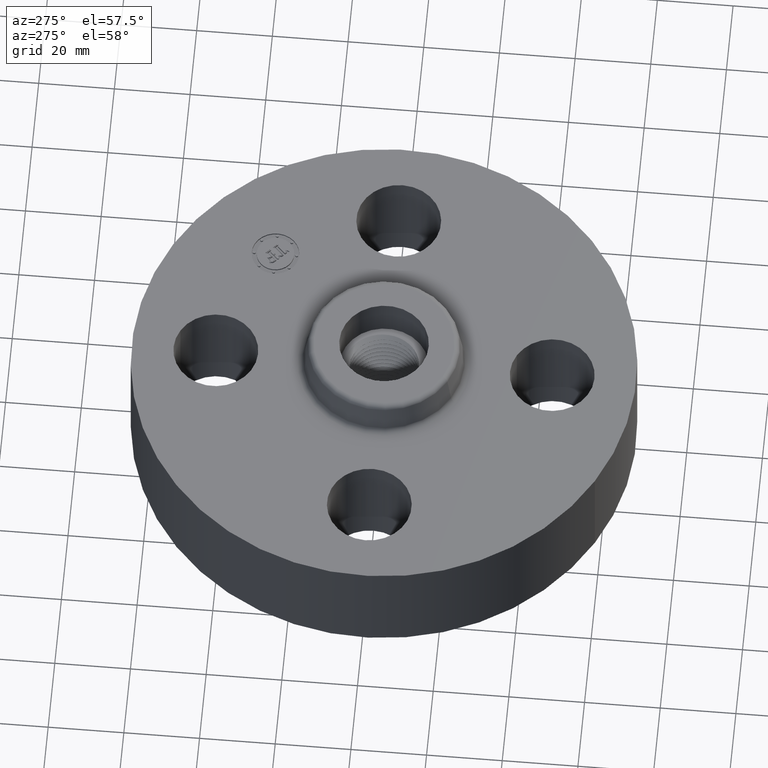
[diagram: clean part render]
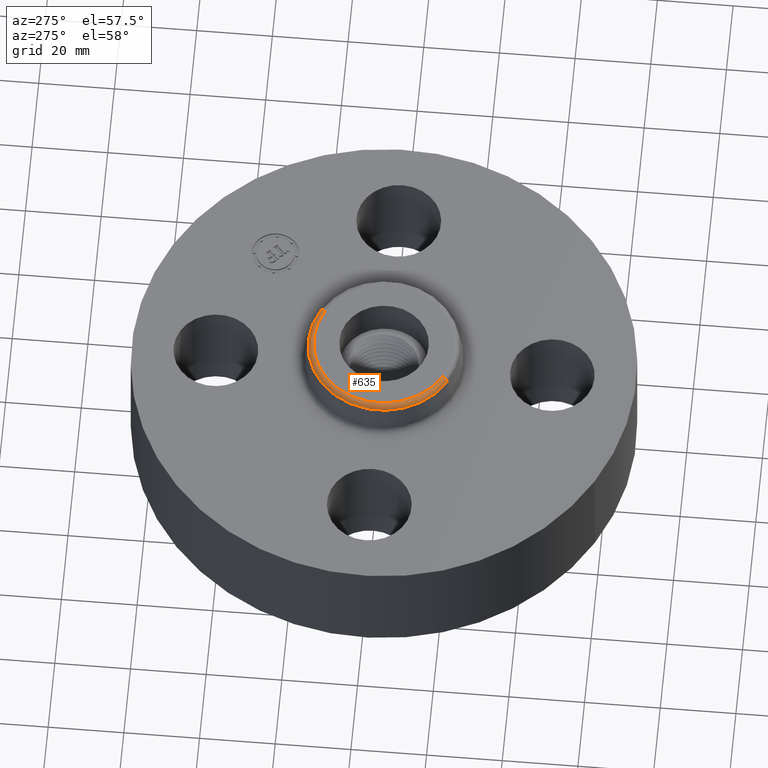
[diagram: same view with one face highlighted and labeled with its STEP entity id]
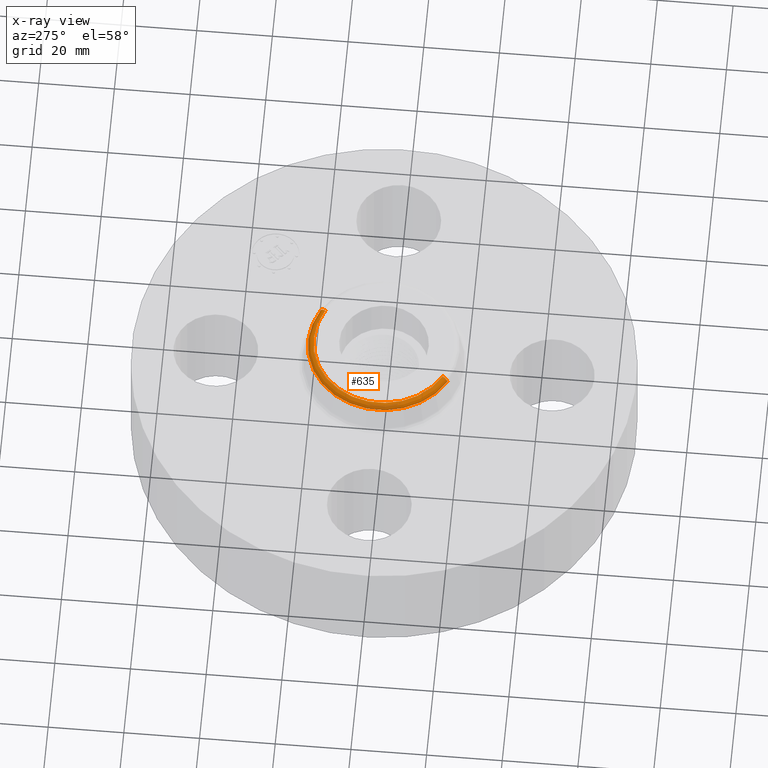
[diagram: x-ray of the same camera — body ghosted, the highlighted face saturated]
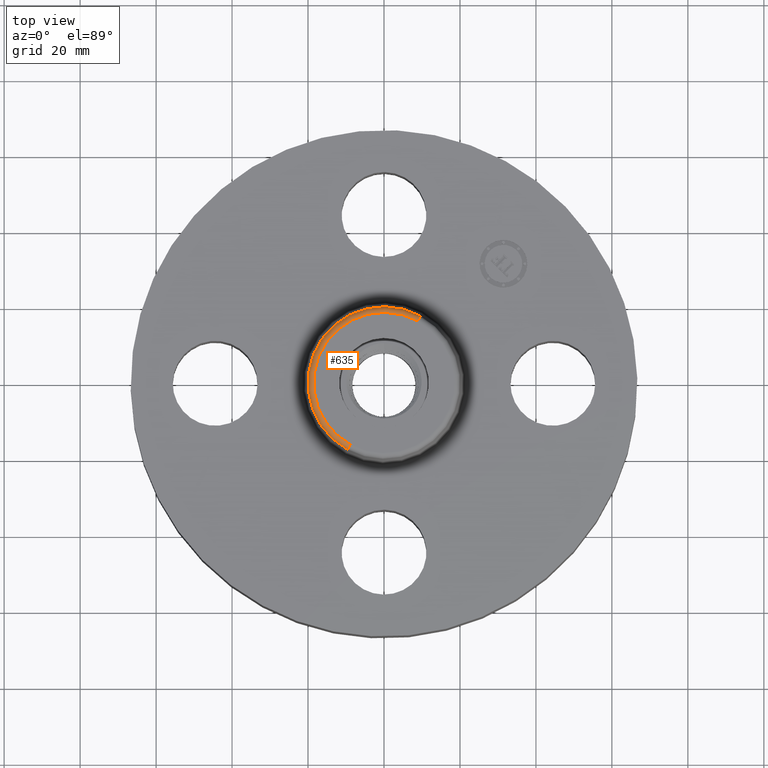
[diagram: same view with one face highlighted and labeled with its STEP entity id]
A machine part, auxiliary view. The second image highlights one B-rep face of the part: STEP entity #635.
The next image is the same camera in x-ray: the body ghosted, the highlighted face saturated — about 0% of this face is hidden behind the body in this view.
A second angle (top view) of the same face is appended — the face is thin or edge-on in the first view.
In plain terms, the highlighted toroidal blend (fillet) surface has major radius 18.5271 mm and minor (blend) radius 1.524 mm.
Its self-contained STEP definition (entity closure, byte-faithful):
#583=AXIS2_PLACEMENT_3D('Circle Axis2P3D',#581,#582,$) ;
#596=AXIS2_PLACEMENT_3D('Torus Axis2P3D',#593,#594,#595) ;
#600=AXIS2_PLACEMENT_3D('Circle Axis2P3D',#598,#599,$) ;
#614=AXIS2_PLACEMENT_3D('Circle Axis2P3D',#612,#613,$) ;
#626=AXIS2_PLACEMENT_3D('Circle Axis2P3D',#624,#625,$) ;
#559=CARTESIAN_POINT('Vertex',(0.378027758462,0.691975170331,1.51041889067)) ;
#566=CARTESIAN_POINT('Vertex',(-0.378027758462,-0.691975170331,1.51041889067)) ;
#581=CARTESIAN_POINT('Axis2P3D Location',(0.,0.,1.51041889067)) ;
#593=CARTESIAN_POINT('Axis2P3D Location',(0.,0.,1.50000000001)) ;
#598=CARTESIAN_POINT('Axis2P3D Location',(0.349699239217,0.640120163679,1.50000000001)) ;
#602=CARTESIAN_POINT('Vertex',(0.349699239217,0.640120163679,1.56000000001)) ;
#609=CARTESIAN_POINT('Vertex',(-0.349699239217,-0.640120163679,1.56000000001)) ;
#612=CARTESIAN_POINT('Axis2P3D Location',(-0.349699239217,-0.640120163679,1.50000000001)) ;
#624=CARTESIAN_POINT('Axis2P3D Location',(0.,0.,1.56000000001)) ;
#582=DIRECTION('Axis2P3D Direction',(0.,0.,-0.0393700787402)) ;
#594=DIRECTION('Axis2P3D Direction',(0.,0.,-0.0393700787402)) ;
#595=DIRECTION('Axis2P3D XDirection',(-0.0188750212049,-0.0345504945626,0.)) ;
#599=DIRECTION('Axis2P3D Direction',(-0.0345504945626,0.0188750212049,0.)) ;
#613=DIRECTION('Axis2P3D Direction',(0.0345504945626,-0.0188750212049,0.)) ;
#625=DIRECTION('Axis2P3D Direction',(0.,0.,-0.0393700787402)) ;
#630=ORIENTED_EDGE('',*,*,#585,.F.) ;
#631=ORIENTED_EDGE('',*,*,#616,.T.) ;
#632=ORIENTED_EDGE('',*,*,#628,.T.) ;
#633=ORIENTED_EDGE('',*,*,#604,.F.) ;
#635=ADVANCED_FACE('PartBody',(#634),#597,.T.) ;
#584=CIRCLE('generated circle',#583,0.788501504451) ;
#601=CIRCLE('generated circle',#600,0.0600000000002) ;
#615=CIRCLE('generated circle',#614,0.0600000000002) ;
#627=CIRCLE('generated circle',#626,0.72941303927) ;
#597=TOROIDAL_SURFACE('homeo Torus',#596,0.72941303927,0.0600000000002) ;
#585=EDGE_CURVE('',#567,#560,#584,.T.) ;
#604=EDGE_CURVE('',#560,#603,#601,.F.) ;
#616=EDGE_CURVE('',#567,#610,#615,.F.) ;
#628=EDGE_CURVE('',#610,#603,#627,.T.) ;
#629=EDGE_LOOP('',(#630,#631,#632,#633)) ;
#634=FACE_OUTER_BOUND('',#629,.T.) ;
#560=VERTEX_POINT('',#559) ;
#567=VERTEX_POINT('',#566) ;
#603=VERTEX_POINT('',#602) ;
#610=VERTEX_POINT('',#609) ;